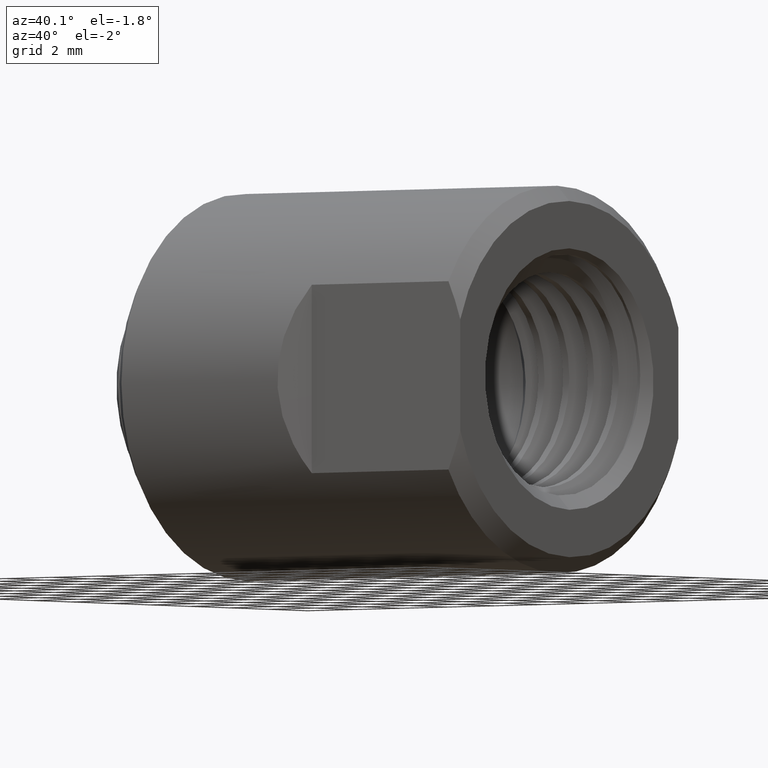
[diagram: clean part render]
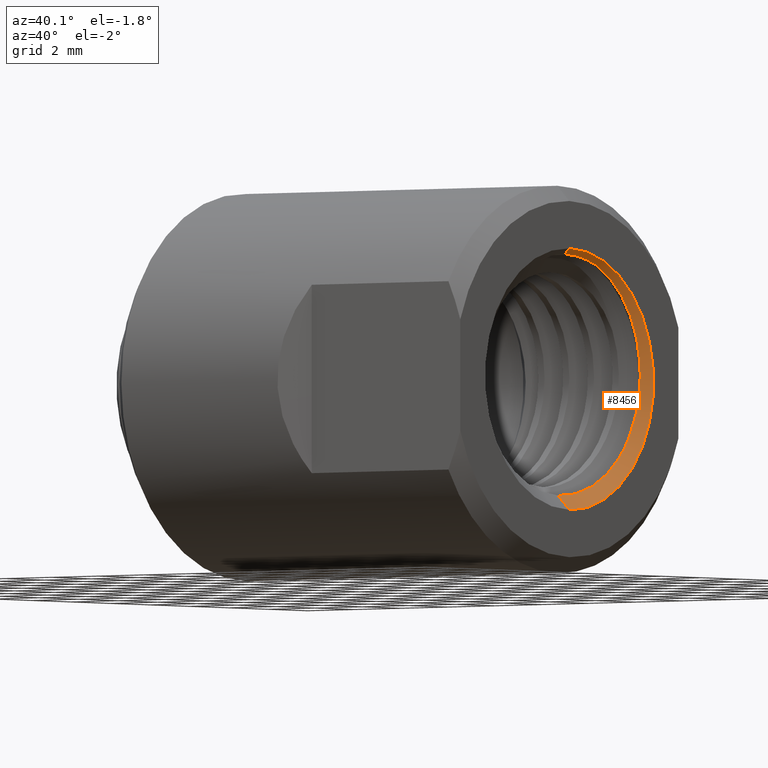
[diagram: same view with one face highlighted and labeled with its STEP entity id]
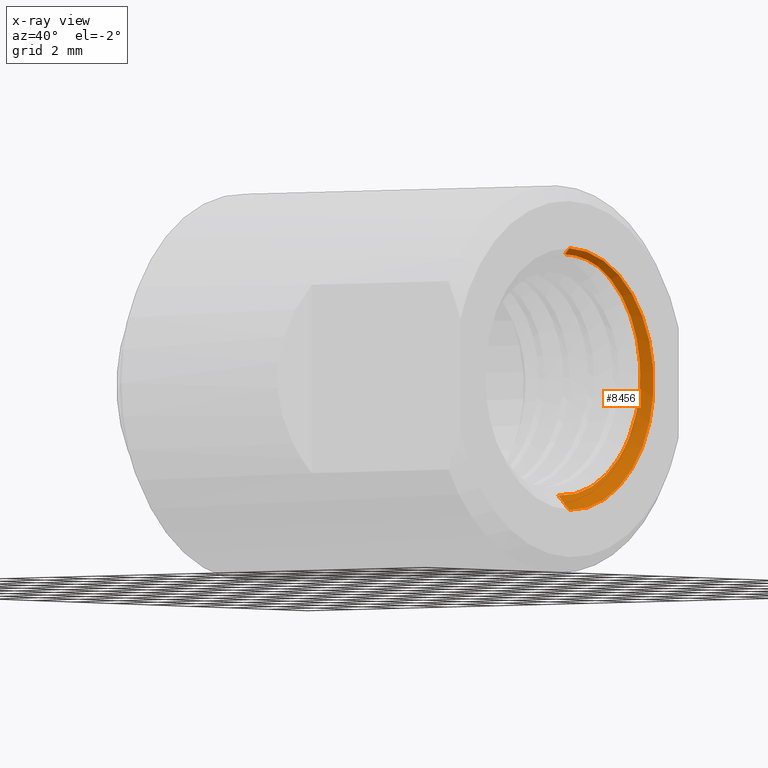
[diagram: x-ray of the same camera — body ghosted, the highlighted face saturated]
A machine part, auxiliary view. The second image highlights one B-rep face of the part: STEP entity #8456.
The next image is the same camera in x-ray: the body ghosted, the highlighted face saturated — about 0% of this face is hidden behind the body in this view.
In plain terms, the highlighted conical surface has half-angle 45 deg.
Its self-contained STEP definition (entity closure, byte-faithful):
#374 = AXIS2_PLACEMENT_3D ( 'NONE', #6606, #3722, #9037 ) ;
#379 = EDGE_CURVE ( 'NONE', #5876, #460, #3109, .T. ) ;
#450 = CARTESIAN_POINT ( 'NONE',  ( 0.4857082257905460110, 0.1510324369867508676, -0.03684472404479161717 ) ) ;
#460 = VERTEX_POINT ( 'NONE', #3904 ) ;
#558 = CARTESIAN_POINT ( 'NONE',  ( 0.4805690784360246437, 0.01780970558758679032, -0.1500690784360248498 ) ) ;
#739 = VERTEX_POINT ( 'NONE', #10100 ) ;
#775 = CONICAL_SURFACE ( 'NONE', #2568, 0.1685000000000001219, 0.7853981633974491672 ) ;
#1183 = CIRCLE ( 'NONE', #374, 0.1685000000000001219 ) ;
#1391 = CARTESIAN_POINT ( 'NONE',  ( 0.4868732415885318465, 0.1564716676324094391, 0.006803719369368859890 ) ) ;
#1447 = CARTESIAN_POINT ( 'NONE',  ( 0.4818253536943311044, 0.06057282219572636406, -0.1389583454921592687 ) ) ;
#2247 = EDGE_CURVE ( 'NONE', #5876, #11122, #9718, .T. ) ;
#2273 = CARTESIAN_POINT ( 'NONE',  ( 0.4882965384950693211, 0.1467448561740568869, 0.05867520393387620770 ) ) ;
#2337 = CARTESIAN_POINT ( 'NONE',  ( 0.4825702749636860966, 0.08406644462157442099, -0.1270247436055553514 ) ) ;
#2345 = VECTOR ( 'NONE', #8581, 39.37007874015748143 ) ;
#2415 = ORIENTED_EDGE ( 'NONE', *, *, #2247, .T. ) ;
#2445 = CARTESIAN_POINT ( 'NONE',  ( 0.4871034527207959153, 0.1560693398690941314, 0.01567700082933104824 ) ) ;
#2500 = CARTESIAN_POINT ( 'NONE',  ( 0.4810638966323488308, 0.03526374051751628852, -0.1474532440255741927 ) ) ;
#2568 = AXIS2_PLACEMENT_3D ( 'NONE', #9027, #3190, #9143 ) ;
#2934 = EDGE_LOOP ( 'NONE', ( #7726, #2415, #7912, #4202, #5403 ) ) ;
#3109 = LINE ( 'NONE', #6938, #9951 ) ;
#3190 = DIRECTION ( 'NONE',  ( 1.000000000000000000, 0.0000000000000000000, 0.0000000000000000000 ) ) ;
#3266 = CARTESIAN_POINT ( 'NONE',  ( 0.4915527447916665515, 0.04395841359844734897, 0.1553360146057779778 ) ) ;
#3275 = CARTESIAN_POINT ( 'NONE',  ( 0.4897097207282202214, 0.1210660370154655885, 0.1049142786681735995 ) ) ;
#3446 = CARTESIAN_POINT ( 'NONE',  ( 0.4842349183862361683, 0.1286427856206074360, -0.08464188804289261847 ) ) ;
#3722 = DIRECTION ( 'NONE',  ( -1.000000000000000000, -0.0000000000000000000, -0.0000000000000000000 ) ) ;
#3904 = CARTESIAN_POINT ( 'NONE',  ( 0.4989999999999999991, 2.063529856563291748E-17, 0.1685000000000001219 ) ) ;
#4155 = CARTESIAN_POINT ( 'NONE',  ( 0.4915527447916667181, 0.06501808875521138120, 0.1473452908631599501 ) ) ;
#4202 = ORIENTED_EDGE ( 'NONE', *, *, #4846, .T. ) ;
#4270 = CARTESIAN_POINT ( 'NONE',  ( 0.4875781701511532895, 0.1537677514194671358, 0.03328356891228400477 ) ) ;
#4386 = CARTESIAN_POINT ( 'NONE',  ( 0.4885388800916439234, 0.1434483759454118212, 0.06691537230867378172 ) ) ;
#4846 = EDGE_CURVE ( 'NONE', #7383, #739, #9324, .T. ) ;
#5317 = CARTESIAN_POINT ( 'NONE',  ( 0.4832943703513412625, 0.1053483121663982697, -0.1110261624232409122 ) ) ;
#5377 = CARTESIAN_POINT ( 'NONE',  ( 0.4835196204871407555, 0.1117105622456095737, -0.1049423063303846354 ) ) ;
#5403 = ORIENTED_EDGE ( 'NONE', *, *, #8000, .F. ) ;
#5876 = VERTEX_POINT ( 'NONE', #9598 ) ;
#6096 = CARTESIAN_POINT ( 'NONE',  ( 0.4849736037426737312, 0.1419066670358702098, -0.06165790169695677808 ) ) ;
#6149 = CARTESIAN_POINT ( 'NONE',  ( 0.4915527447916665515, 0.02219438889821106695, 0.1599031852751332528 ) ) ;
#6216 = CARTESIAN_POINT ( 'NONE',  ( 0.4839913921226823290, 0.1233455358658745310, -0.09177482965857890196 ) ) ;
#6301 = EDGE_CURVE ( 'NONE', #11122, #7383, #9359, .T. ) ;
#6606 = CARTESIAN_POINT ( 'NONE',  ( 0.4989999999999999991, 0.0000000000000000000, 0.0000000000000000000 ) ) ;
#6938 = CARTESIAN_POINT ( 'NONE',  ( 0.4989999999999999991, 2.063529856563291748E-17, 0.1685000000000001219 ) ) ;
#7088 = CARTESIAN_POINT ( 'NONE',  ( 0.4915527447916667181, 0.05473326784075846496, 0.1518836062387655395 ) ) ;
#7097 = CARTESIAN_POINT ( 'NONE',  ( 0.4820757942772068705, 0.06864040908968035981, -0.1354282087402980395 ) ) ;
#7161 = CARTESIAN_POINT ( 'NONE',  ( 0.4861898816442074556, 0.1547212071123539867, -0.01947882632829704697 ) ) ;
#7264 = CARTESIAN_POINT ( 'NONE',  ( 0.4915527447916667181, 0.06501808875521138120, 0.1473452908631599501 ) ) ;
#7383 = VERTEX_POINT ( 'NONE', #8767 ) ;
#7693 = CARTESIAN_POINT ( 'NONE',  ( 0.4989999999999999991, 0.0000000000000000000, -0.1685000000000001219 ) ) ;
#7726 = ORIENTED_EDGE ( 'NONE', *, *, #379, .F. ) ;
#7912 = ORIENTED_EDGE ( 'NONE', *, *, #6301, .T. ) ;
#8000 = EDGE_CURVE ( 'NONE', #460, #739, #1183, .T. ) ;
#8090 = CARTESIAN_POINT ( 'NONE',  ( 0.4915527447916664405, 0.01116957384449596656, 0.1610527447917144139 ) ) ;
#8098 = CARTESIAN_POINT ( 'NONE',  ( 0.4864227151464395882, 0.1557993732933309616, -0.01074853776390892468 ) ) ;
#8456 = ADVANCED_FACE ( 'NONE', ( #8904 ), #775, .F. ) ;
#8581 = DIRECTION ( 'NONE',  ( 0.7071067811865469066, 0.0000000000000000000, -0.7071067811865481278 ) ) ;
#8767 = CARTESIAN_POINT ( 'NONE',  ( 0.4800945554337723853, 1.832004934818407092E-17, -0.1495945554337724526 ) ) ;
#8904 = FACE_OUTER_BOUND ( 'NONE', #2934, .T. ) ;
#9027 = CARTESIAN_POINT ( 'NONE',  ( 0.4989999999999999991, 0.0000000000000000000, 0.0000000000000000000 ) ) ;
#9037 = DIRECTION ( 'NONE',  ( 0.0000000000000000000, 0.0000000000000000000, 1.000000000000000000 ) ) ;
#9050 = CARTESIAN_POINT ( 'NONE',  ( 0.4878168311584342165, 0.1518936682011651773, 0.04188058900405253193 ) ) ;
#9103 = CARTESIAN_POINT ( 'NONE',  ( 0.4906115874526427723, 0.09554518894917972405, 0.1297038677835254117 ) ) ;
#9143 = DIRECTION ( 'NONE',  ( 0.0000000000000000000, 0.0000000000000000000, -1.000000000000000000 ) ) ;
#9225 = CARTESIAN_POINT ( 'NONE',  ( 0.4910758190100954490, 0.08111849716583521830, 0.1397194754561048857 ) ) ;
#9324 = LINE ( 'NONE', #7693, #2345 ) ;
#9359 = B_SPLINE_CURVE_WITH_KNOTS ( 'NONE', 3,
 ( #4155, #9225, #9103, #3275, #11057, #4386, #2273, #9050, #4270, #2445, #1391, #8098, #7161, #450, #11939, #6096, #12054, #3446, #6216, #5377, #5317, #10051, #2337, #7097, #1447, #2500, #558, #10165 ),
 .UNSPECIFIED., .F., .F.,
 ( 4, 2, 2, 2, 2, 2, 2, 2, 2, 2, 2, 2, 2, 4 ),
 ( 0.0000000000000000000, 0.001338718890401070175, 0.002677437780802140350, 0.003346797226002675221, 0.004016156671203210959, 0.004685516116403745830, 0.005354875561604280701, 0.006024235006804815572, 0.006693594452005350443, 0.007362953897205886181, 0.008032313342406421919, 0.008701672787606955922, 0.009371032232807491660, 0.01070975112320856140 ),
 .UNSPECIFIED. ) ;
#9598 = CARTESIAN_POINT ( 'NONE',  ( 0.4915527447916667181, -6.863352009929323174E-13, 0.1610527447916667299 ) ) ;
#9718 = B_SPLINE_CURVE_WITH_KNOTS ( 'NONE', 3,
 ( #11874, #8090, #6149, #3266, #7088, #10096 ),
 .UNSPECIFIED., .F., .F.,
 ( 4, 2, 4 ),
 ( 0.001518940537543416987, 0.002375102875065907351, 0.003231265212588397932 ),
 .UNSPECIFIED. ) ;
#9951 = VECTOR ( 'NONE', #10784, 39.37007874015748143 ) ;
#10051 = CARTESIAN_POINT ( 'NONE',  ( 0.4828155067559300462, 0.09145938435996836535, -0.1221235055936787245 ) ) ;
#10096 = CARTESIAN_POINT ( 'NONE',  ( 0.4915527447916667181, 0.06501808875521138120, 0.1473452908631599501 ) ) ;
#10100 = CARTESIAN_POINT ( 'NONE',  ( 0.4989999999999999991, 0.0000000000000000000, -0.1685000000000001219 ) ) ;
#10165 = CARTESIAN_POINT ( 'NONE',  ( 0.4800945554337723853, 1.832004934818407092E-17, -0.1495945554337724526 ) ) ;
#10784 = DIRECTION ( 'NONE',  ( 0.7071067811865469066, 8.659560562354940254E-17, 0.7071067811865481278 ) ) ;
#11057 = CARTESIAN_POINT ( 'NONE',  ( 0.4892612074443054015, 0.1314896449794264177, 0.09072407740072495341 ) ) ;
#11122 = VERTEX_POINT ( 'NONE', #7264 ) ;
#11874 = CARTESIAN_POINT ( 'NONE',  ( 0.4915527447916667181, -6.863352009929323174E-13, 0.1610527447916667299 ) ) ;
#11939 = CARTESIAN_POINT ( 'NONE',  ( 0.4854629197044250111, 0.1484388842110853646, -0.04534874722790484258 ) ) ;
#12054 = CARTESIAN_POINT ( 'NONE',  ( 0.4847280113356061682, 0.1379564660763026307, -0.06952038061422169402 ) ) ;